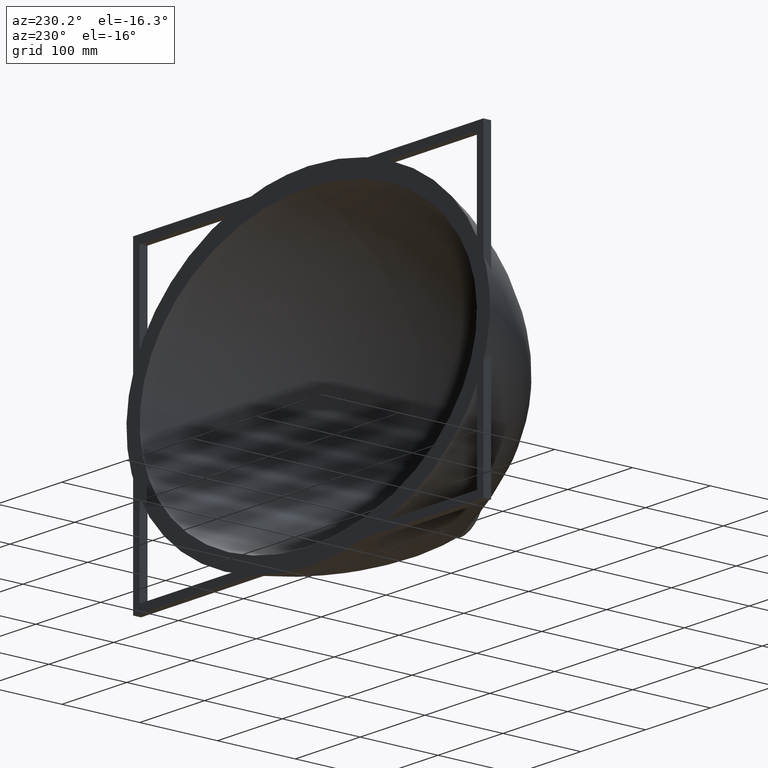
[diagram: clean part render]
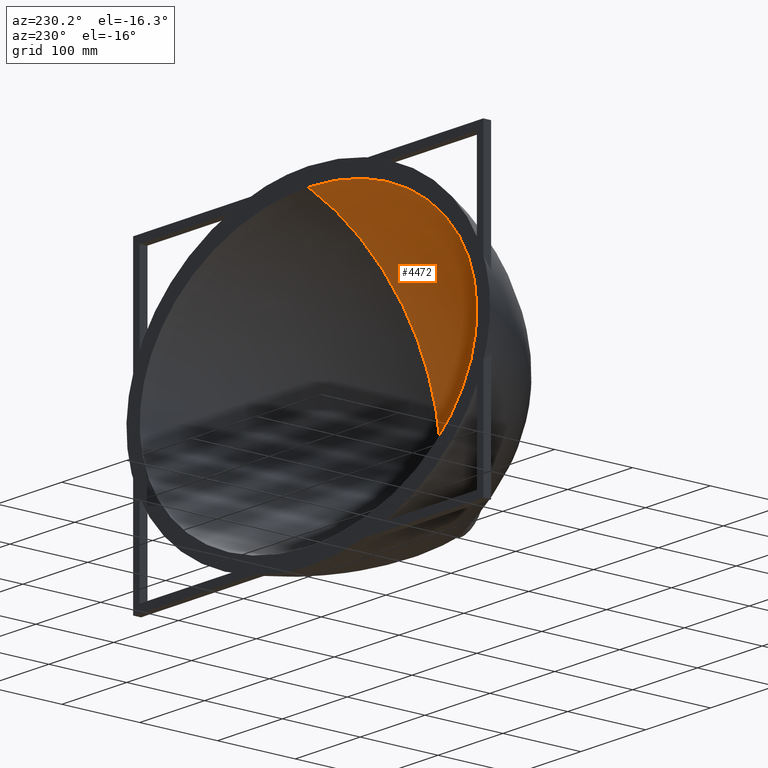
[diagram: same view with one face highlighted and labeled with its STEP entity id]
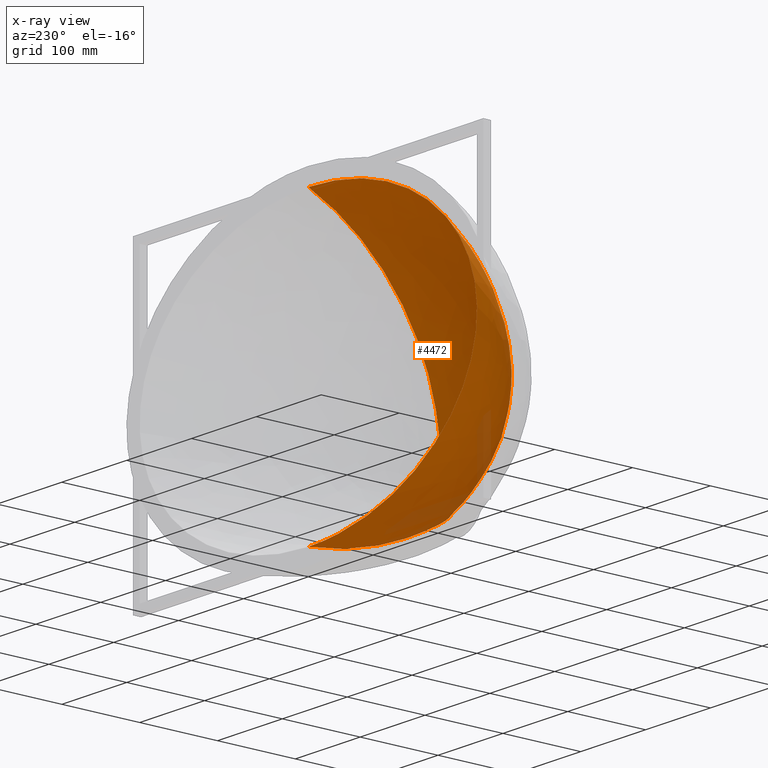
[diagram: x-ray of the same camera — body ghosted, the highlighted face saturated]
A machine part, auxiliary view. The second image highlights one B-rep face of the part: STEP entity #4472.
The next image is the same camera in x-ray: the body ghosted, the highlighted face saturated — about 7% of this face is hidden behind the body in this view.
In plain terms, the highlighted face is a freeform B-spline surface patch.
Its self-contained STEP definition (entity closure, byte-faithful):
#4 = CARTESIAN_POINT ( 'NONE',  ( -38.77865759090425300, -121.7014424945202400, -157.4994537610010900 ) ) ;
#5 = CARTESIAN_POINT ( 'NONE',  ( 111.4772775086861300, -145.6209346836106700, -114.7372125029550500 ) ) ;
#24 = CARTESIAN_POINT ( 'NONE',  ( 97.48662995115405700, -139.0680993305145700, -128.5529957803658800 ) ) ;
#31 = CARTESIAN_POINT ( 'NONE',  ( 81.01955231311032400, -132.7755290318717700, -140.1380242361425400 ) ) ;
#47 = CARTESIAN_POINT ( 'NONE',  ( 62.64783615071378600, -127.1529339918621400, -149.3729875084795300 ) ) ;
#56 = CARTESIAN_POINT ( 'NONE',  ( 38.77865759878368800, -121.7014424992332200, -157.4994537571244000 ) ) ;
#62 = CARTESIAN_POINT ( 'NONE',  ( 19.48563583624291300, -119.3554168101525500, -160.5968919771172200 ) ) ;
#74 = CARTESIAN_POINT ( 'NONE',  ( 6.500890367500512700, -118.8853150008827000, -161.2054162387754300 ) ) ;
#82 = CARTESIAN_POINT ( 'NONE',  ( 3.612973020026208000, -118.8099933056775700, -161.3023222456049800 ) ) ;
#92 = CARTESIAN_POINT ( 'NONE',  ( 1.445203446103377400, -118.7869051447916700, -161.3316144456078100 ) ) ;
#100 = CARTESIAN_POINT ( 'NONE',  ( 1.524100940938910600E-010, -118.7869051447035200, -161.3316144456561600 ) ) ;
#109 = CARTESIAN_POINT ( 'NONE',  ( 3.048371017416728900E-010, -60.40230100190881800, -180.5641899279885400 ) ) ;
#110 = VERTEX_POINT ( 'NONE', #3956 ) ;
#116 = CARTESIAN_POINT ( 'NONE',  ( -2.311225196482916900, -60.40230100183551100, -180.5641899280500700 ) ) ;
#134 = CARTESIAN_POINT ( 'NONE',  ( -5.777932478304570000, -60.42149997007892600, -180.5261086669280000 ) ) ;
#143 = CARTESIAN_POINT ( 'NONE',  ( -10.39661467768020700, -60.48413380896416000, -180.3996876762214800 ) ) ;
#154 = CARTESIAN_POINT ( 'NONE',  ( -31.16490232121122300, -60.87504764441063500, -179.6046301102378800 ) ) ;
#159 = CARTESIAN_POINT ( 'NONE',  ( -62.05236356497720600, -62.82589123243855100, -175.5383430895617500 ) ) ;
#172 = CARTESIAN_POINT ( 'NONE',  ( -100.6154283992664200, -67.35913180565974300, -164.5788566228046900 ) ) ;
#179 = CARTESIAN_POINT ( 'NONE',  ( -130.6972901196513100, -72.03468750912125500, -151.8808939448902600 ) ) ;
#186 = CARTESIAN_POINT ( 'NONE',  ( -158.0814858321655500, -77.26741790183939400, -135.6597801385951800 ) ) ;
#192 = CARTESIAN_POINT ( 'NONE',  ( -181.7783064586218100, -82.71664244729403500, -115.9982643908294300 ) ) ;
#201 = CARTESIAN_POINT ( 'NONE',  ( -200.9292302724199400, -88.04168060896529400, -93.18661258618435300 ) ) ;
#211 = CARTESIAN_POINT ( 'NONE',  ( -212.3007627005733600, -92.09182331010453000, -71.81629032477590600 ) ) ;
#217 = CARTESIAN_POINT ( 'NONE',  ( -219.6954429082276500, -95.63849885072858100, -48.61384965793293800 ) ) ;
#230 = CARTESIAN_POINT ( 'NONE',  ( -221.8944651530898400, -97.72422566344094700, -30.82330739874125300 ) ) ;
#234 = CARTESIAN_POINT ( 'NONE',  ( -221.0554262213602500, -99.06643837468026000, -15.00529077107875700 ) ) ;
#250 = CARTESIAN_POINT ( 'NONE',  ( -219.0854808462910900, -100.2323460543663200, 1.155441100044987300 ) ) ;
#304 = CARTESIAN_POINT ( 'NONE',  ( 4.572232349675520200E-010, 0.0000000000000000000, -185.0000000000000000 ) ) ;
#314 = CARTESIAN_POINT ( 'NONE',  ( -2.566803417555719900, -1.232595164407830900E-029, -185.0000000000000000 ) ) ;
#315 = CARTESIAN_POINT ( 'NONE',  ( -211.8879677622130400, -101.3541522771521000, 26.41958874611816200 ) ) ;
#329 = CARTESIAN_POINT ( 'NONE',  ( -196.2075036124609800, -101.7291505643255500, 52.53914676512866300 ) ) ;
#333 = CARTESIAN_POINT ( 'NONE',  ( -176.7752967224104500, -101.7757040705736800, 75.15800767046704300 ) ) ;
#345 = CARTESIAN_POINT ( 'NONE',  ( -161.8342083695843000, -101.6783197657684100, 88.80578691093683100 ) ) ;
#348 = CARTESIAN_POINT ( 'NONE',  ( -137.2440861088230700, -101.4359267998660000, 106.1407529435990800 ) ) ;
#359 = CARTESIAN_POINT ( 'NONE',  ( -113.2358966659637600, -101.1575478542338800, 119.1701625899922300 ) ) ;
#363 = CARTESIAN_POINT ( 'NONE',  ( -82.63337728446762800, -100.8185660862272800, 130.6263130349607300 ) ) ;
#377 = CARTESIAN_POINT ( 'NONE',  ( -59.82816381559847900, -100.6021361604114000, 136.4903864094978600 ) ) ;
#380 = CARTESIAN_POINT ( 'NONE',  ( -41.30958926748942900, -100.4647028521346600, 139.7592718520391800 ) ) ;
#383 = CARTESIAN_POINT ( 'NONE',  ( -6.416783112928707000, -1.232595164407830900E-029, -184.9590691978430100 ) ) ;
#393 = CARTESIAN_POINT ( 'NONE',  ( -27.42489433728246300, -100.3845558589379400, 141.4996067370633500 ) ) ;
#394 = CARTESIAN_POINT ( 'NONE',  ( -62.64783613887832600, -127.1529339844002800, -149.3729875167236100 ) ) ;
#395 = CARTESIAN_POINT ( 'NONE',  ( -13.58047225771170500, -100.3324095255749000, 142.5341508308071900 ) ) ;
#398 = CARTESIAN_POINT ( 'NONE',  ( -11.54635462865013400, -1.848892746611746400E-029, -184.8230582913892300 ) ) ;
#410 = CARTESIAN_POINT ( 'NONE',  ( -81.01955229871150300, -132.7755290224717400, -140.1380242488191100 ) ) ;
#411 = CARTESIAN_POINT ( 'NONE',  ( 2.597816890712497400E-009, -100.3133365238683900, 142.8813953691429500 ) ) ;
#426 = CARTESIAN_POINT ( 'NONE',  ( -34.61329639284462400, -4.930380657631323800E-029, -183.9673373527186000 ) ) ;
#434 = CARTESIAN_POINT ( 'NONE',  ( 13.58047226229799500, -100.3324095256412100, 142.5341508315014800 ) ) ;
#439 = CARTESIAN_POINT ( 'NONE',  ( 27.42489434004659200, -100.3845558590723400, 141.4996067386034300 ) ) ;
#444 = CARTESIAN_POINT ( 'NONE',  ( 41.30958926724046200, -100.4647028523407400, 139.7592718547376500 ) ) ;
#448 = CARTESIAN_POINT ( 'NONE',  ( -68.94524658473652300, -1.232595164407830900E-028, -179.5850697860287300 ) ) ;
#451 = CARTESIAN_POINT ( 'NONE',  ( 59.82816380992162000, -100.6021361607201800, 136.4903864143604200 ) ) ;
#460 = CARTESIAN_POINT ( 'NONE',  ( -112.1245852803711900, 9.860761315262647600E-029, -167.6884198015981200 ) ) ;
#464 = CARTESIAN_POINT ( 'NONE',  ( 82.63337726983252200, -100.8185660866823700, 130.6263130440378000 ) ) ;
#472 = CARTESIAN_POINT ( 'NONE',  ( 113.2358966370135500, -101.1575478549437200, 119.1701626086586300 ) ) ;
#480 = CARTESIAN_POINT ( 'NONE',  ( 137.2440860692005900, -101.4359268008656700, 106.1407529741082500 ) ) ;
#489 = CARTESIAN_POINT ( 'NONE',  ( 161.8342083234571200, -101.6783197671980300, 88.80578695623522400 ) ) ;
#498 = CARTESIAN_POINT ( 'NONE',  ( 176.7752966758009700, -101.7757040723820100, 75.15800772592653800 ) ) ;
#501 = CARTESIAN_POINT ( 'NONE',  ( -146.2772247974058100, -4.930380657631323800E-029, -153.7962908367967700 ) ) ;
#506 = CARTESIAN_POINT ( 'NONE',  ( 196.2075035712572100, -101.7291505668826700, 52.53914683323463900 ) ) ;
#514 = CARTESIAN_POINT ( 'NONE',  ( -177.9506942754561000, 5.546678239835239300E-029, -135.9285441674715900 ) ) ;
#520 = CARTESIAN_POINT ( 'NONE',  ( 211.8879677332387500, -101.3541522807655200, 26.41958882385945600 ) ) ;
#523 = CARTESIAN_POINT ( 'NONE',  ( -205.9902479773966500, 3.081487911019577400E-029, -114.1630346393565700 ) ) ;
#526 = CARTESIAN_POINT ( 'NONE',  ( 219.0854808401760700, -100.2323460581834000, 1.155441149237736800 ) ) ;
#540 = CARTESIAN_POINT ( 'NONE',  ( 221.0554262184481600, -99.06643837885886200, -15.00529072263784900 ) ) ;
#546 = CARTESIAN_POINT ( 'NONE',  ( 221.8944651534981500, -97.72422566796818400, -30.82330735199750600 ) ) ;
#556 = CARTESIAN_POINT ( 'NONE',  ( 219.6954429199981600, -95.63849885924211900, -48.61384959088810100 ) ) ;
#559 = CARTESIAN_POINT ( 'NONE',  ( -229.4518989697168400, 3.081487911019577400E-029, -88.80985294769922700 ) ) ;
#562 = CARTESIAN_POINT ( 'NONE',  ( 212.3007627212429600, -92.09182331956063200, -71.81629026579831500 ) ) ;
#573 = CARTESIAN_POINT ( 'NONE',  ( 200.9292302996326200, -88.04168061887402500, -93.18661253542181600 ) ) ;
#582 = CARTESIAN_POINT ( 'NONE',  ( 181.7783064899985000, -82.71664245706091400, -115.9982643500457200 ) ) ;
#592 = CARTESIAN_POINT ( 'NONE',  ( 158.0814858641102200, -77.26741791087583500, -135.6597801079388700 ) ) ;
#595 = CARTESIAN_POINT ( 'NONE',  ( -244.2896152223376000, 4.930380657631323800E-029, -64.95274969968421900 ) ) ;
#600 = CARTESIAN_POINT ( 'NONE',  ( 130.6972901488588000, -72.03468751693841900, -151.8808939234452000 ) ) ;
#607 = CARTESIAN_POINT ( 'NONE',  ( -255.0079137470581300, -4.930380657631323800E-029, -38.86048423362694800 ) ) ;
#608 = CARTESIAN_POINT ( 'NONE',  ( 100.6154284231772500, -67.35913181186524000, -164.5788566093579000 ) ) ;
#613 = CARTESIAN_POINT ( 'NONE',  ( 65.75914860801410100, -167.7917439943316800, 32.15789512977750800 ) ) ;
#614 = CARTESIAN_POINT ( 'NONE',  ( 62.05236358081703700, -62.82589123635788300, -175.5383430836969300 ) ) ;
#618 = CARTESIAN_POINT ( 'NONE',  ( -259.3992761697404600, 3.081487911019577400E-029, -18.69248544513646200 ) ) ;
#620 = CARTESIAN_POINT ( 'NONE',  ( 31.16490232506386700, -60.87504764638595100, -179.6046301080889100 ) ) ;
#625 = CARTESIAN_POINT ( 'NONE',  ( -260.1059458262676600, 9.860761315262647600E-029, -0.6589969940730567900 ) ) ;
#630 = CARTESIAN_POINT ( 'NONE',  ( 10.39661467887218300, -60.48413380962352200, -180.3996876755838600 ) ) ;
#636 = CARTESIAN_POINT ( 'NONE',  ( 5.777932479057578300, -60.42149997044546700, -180.5261086666008900 ) ) ;
#648 = CARTESIAN_POINT ( 'NONE',  ( -259.5316745309576700, 1.294224922628222500E-028, 17.82087994229939200 ) ) ;
#651 = CARTESIAN_POINT ( 'NONE',  ( 2.311225197092631400, -60.40230100198213100, -180.5641899279270000 ) ) ;
#654 = CARTESIAN_POINT ( 'NONE',  ( -253.7212669368725200, -1.664003471950571800E-028, 47.01350990581718000 ) ) ;
#667 = CARTESIAN_POINT ( 'NONE',  ( -237.2697526475222700, 4.930380657631323800E-029, 77.72788248232859600 ) ) ;
#671 = CARTESIAN_POINT ( 'NONE',  ( 3.048371017416728900E-010, -60.40230100190881800, -180.5641899279885400 ) ) ;
#681 = CARTESIAN_POINT ( 'NONE',  ( -215.3262453614607400, 3.081487911019577400E-029, 104.6215120696889800 ) ) ;
#690 = CARTESIAN_POINT ( 'NONE',  ( -197.8533207069275200, -7.395570986446985700E-029, 120.9798537218212600 ) ) ;
#700 = CARTESIAN_POINT ( 'NONE',  ( 4.572232349675520200E-010, 0.0000000000000000000, -185.0000000000000000 ) ) ;
#702 = CARTESIAN_POINT ( 'NONE',  ( -168.3880016434328300, 6.162975822039154700E-030, 141.7818512493566300 ) ) ;
#706 = CARTESIAN_POINT ( 'NONE',  ( -139.1342931326053600, 1.479114197289397100E-028, 157.3938885333099100 ) ) ;
#712 = CARTESIAN_POINT ( 'NONE',  ( -101.5449471098858700, 1.232595164407830900E-029, 170.9625568690589400 ) ) ;
#713 = CARTESIAN_POINT ( 'NONE',  ( -2.566803417555719900, 0.0000000000000000000, -185.0000000000000000 ) ) ;
#717 = CARTESIAN_POINT ( 'NONE',  ( -6.416783112928707000, 0.0000000000000000000, -184.9590691978430100 ) ) ;
#723 = CARTESIAN_POINT ( 'NONE',  ( -73.45947751149606100, -8.011868568650901100E-029, 177.8115466436256900 ) ) ;
#733 = CARTESIAN_POINT ( 'NONE',  ( -50.65242750111525500, -3.697785493223492800E-029, 181.5864721567493200 ) ) ;
#734 = CARTESIAN_POINT ( 'NONE',  ( -11.54635462865013400, 0.0000000000000000000, -184.8230582913892300 ) ) ;
#736 = CARTESIAN_POINT ( 'NONE',  ( -34.61329639284462400, 0.0000000000000000000, -183.9673373527186000 ) ) ;
#739 = CARTESIAN_POINT ( 'NONE',  ( -33.58084321257378900, 1.848892746611746400E-029, 183.5771990638075400 ) ) ;
#754 = CARTESIAN_POINT ( 'NONE',  ( -16.58790103192467000, 6.779273404243070200E-029, 184.7476461294701000 ) ) ;
#755 = CARTESIAN_POINT ( 'NONE',  ( -68.94524658473652300, 0.0000000000000000000, -179.5850697860287300 ) ) ;
#759 = CARTESIAN_POINT ( 'NONE',  ( -112.1245852803711900, 0.0000000000000000000, -167.6884198015981200 ) ) ;
#770 = CARTESIAN_POINT ( 'NONE',  ( -146.2772247974058100, 0.0000000000000000000, -153.7962908367967700 ) ) ;
#774 = CARTESIAN_POINT ( 'NONE',  ( -177.9506942754561000, 0.0000000000000000000, -135.9285441674715900 ) ) ;
#786 = CARTESIAN_POINT ( 'NONE',  ( -205.9902479773966500, 0.0000000000000000000, -114.1630346393565700 ) ) ;
#789 = CARTESIAN_POINT ( 'NONE',  ( -229.4518989697168400, 0.0000000000000000000, -88.80985294769922700 ) ) ;
#806 = CARTESIAN_POINT ( 'NONE',  ( -244.2896152223376000, 0.0000000000000000000, -64.95274969968421900 ) ) ;
#808 = CARTESIAN_POINT ( 'NONE',  ( -5.529300341382571200, 7.601003513848291200E-029, 185.0077454772929300 ) ) ;
#818 = CARTESIAN_POINT ( 'NONE',  ( -97.48662993548610700, -139.0680993196487800, -128.5529957980177500 ) ) ;
#820 = CARTESIAN_POINT ( 'NONE',  ( -255.0079137470581300, 0.0000000000000000000, -38.86048423362694800 ) ) ;
#834 = CARTESIAN_POINT ( 'NONE',  ( 3.744437485769802600E-009, 0.0000000000000000000, 185.0077454772356300 ) ) ;
#846 = CARTESIAN_POINT ( 'NONE',  ( -259.3992761697404600, 0.0000000000000000000, -18.69248544513646200 ) ) ;
#854 = CARTESIAN_POINT ( 'NONE',  ( -260.1059458262676600, 0.0000000000000000000, -0.6589969940730567900 ) ) ;
#862 = CARTESIAN_POINT ( 'NONE',  ( -259.5316745309576700, 0.0000000000000000000, 17.82087994229939200 ) ) ;
#870 = CARTESIAN_POINT ( 'NONE',  ( -253.7212669368725200, 0.0000000000000000000, 47.01350990581718000 ) ) ;
#878 = CARTESIAN_POINT ( 'NONE',  ( -237.2697526475222700, 0.0000000000000000000, 77.72788248232859600 ) ) ;
#889 = FACE_OUTER_BOUND ( 'NONE', #1981, .T. ) ;
#888 = CARTESIAN_POINT ( 'NONE',  ( -215.3262453614607400, 0.0000000000000000000, 104.6215120696889800 ) ) ;
#898 = CARTESIAN_POINT ( 'NONE',  ( -197.8533207069275200, 0.0000000000000000000, 120.9798537218212600 ) ) ;
#910 = CARTESIAN_POINT ( 'NONE',  ( -168.3880016434328300, 0.0000000000000000000, 141.7818512493566300 ) ) ;
#920 = CARTESIAN_POINT ( 'NONE',  ( -139.1342931326053600, 0.0000000000000000000, 157.3938885333099100 ) ) ;
#932 = CARTESIAN_POINT ( 'NONE',  ( -101.5449471098858700, 0.0000000000000000000, 170.9625568690589400 ) ) ;
#940 = CARTESIAN_POINT ( 'NONE',  ( -73.45947751149606100, 0.0000000000000000000, 177.8115466436256900 ) ) ;
#953 = CARTESIAN_POINT ( 'NONE',  ( -50.65242750111525500, 0.0000000000000000000, 181.5864721567493200 ) ) ;
#959 = CARTESIAN_POINT ( 'NONE',  ( -33.58084321257378900, 0.0000000000000000000, 183.5771990638075400 ) ) ;
#968 = CARTESIAN_POINT ( 'NONE',  ( -16.58790103192467000, 0.0000000000000000000, 184.7476461294701000 ) ) ;
#974 = ORIENTED_EDGE ( 'NONE', *, *, #3096, .F. ) ;
#978 = CARTESIAN_POINT ( 'NONE',  ( 3.888477213831453800E-009, 0.0000000000000000000, 185.1377951512043300 ) ) ;
#987 = ORIENTED_EDGE ( 'NONE', *, *, #2575, .T. ) ;
#991 = CARTESIAN_POINT ( 'NONE',  ( 16.58790103883738700, 0.0000000000000000000, 184.7476461291264500 ) ) ;
#998 = CARTESIAN_POINT ( 'NONE',  ( 33.58084321689379000, 0.0000000000000000000, 183.5771990633527700 ) ) ;
#1006 = CARTESIAN_POINT ( 'NONE',  ( 50.65242750113803500, 0.0000000000000000000, 181.5864721566628600 ) ) ;
#1011 = CARTESIAN_POINT ( 'NONE',  ( 73.45947750377109700, 0.0000000000000000000, 177.8115466449803300 ) ) ;
#1025 = CARTESIAN_POINT ( 'NONE',  ( 101.5449470893769300, 0.0000000000000000000, 170.9625568745314900 ) ) ;
#1030 = CARTESIAN_POINT ( 'NONE',  ( 139.1342930917562900, 0.0000000000000000000, 157.3938885502267900 ) ) ;
#1042 = CARTESIAN_POINT ( 'NONE',  ( 168.3880015876912400, 0.0000000000000000000, 141.7818512817267400 ) ) ;
#1047 = CARTESIAN_POINT ( 'NONE',  ( 197.8533206427430900, 0.0000000000000000000, 120.9798537739468100 ) ) ;
#1062 = CARTESIAN_POINT ( 'NONE',  ( 215.3262452974707600, 0.0000000000000000000, 104.6215121355303200 ) ) ;
#1080 = CARTESIAN_POINT ( 'NONE',  ( 237.2697525929354200, 0.0000000000000000000, 77.72788256511545100 ) ) ;
#1111 = CARTESIAN_POINT ( 'NONE',  ( 253.7212669017755500, 0.0000000000000000000, 47.01351000140578400 ) ) ;
#1123 = CARTESIAN_POINT ( 'NONE',  ( 259.5316745247481000, 0.0000000000000000000, 17.82088000448748800 ) ) ;
#1126 = CARTESIAN_POINT ( 'NONE',  ( 260.1059458264750200, 0.0000000000000000000, -0.6589969328866943600 ) ) ;
#1139 = CARTESIAN_POINT ( 'NONE',  ( 259.3992761764650900, 0.0000000000000000000, -18.69248538637459900 ) ) ;
#1144 = CARTESIAN_POINT ( 'NONE',  ( 255.0079137717297000, 0.0000000000000000000, -38.86048415290631700 ) ) ;
#1158 = CARTESIAN_POINT ( 'NONE',  ( 244.2896152594268200, 0.0000000000000000000, -64.95274962984925100 ) ) ;
#1163 = CARTESIAN_POINT ( 'NONE',  ( 229.4518990156732900, 0.0000000000000000000, -88.80985288877889200 ) ) ;
#1177 = CARTESIAN_POINT ( 'NONE',  ( 205.9902480284779900, 0.0000000000000000000, -114.1630345934451200 ) ) ;
#1183 = CARTESIAN_POINT ( 'NONE',  ( 177.9506943263256700, 0.0000000000000000000, -135.9285441345604100 ) ) ;
#1196 = CARTESIAN_POINT ( 'NONE',  ( 146.2772248432047500, 0.0000000000000000000, -153.7962908153193400 ) ) ;
#1198 = CARTESIAN_POINT ( 'NONE',  ( -111.4772774934118800, -145.6209346718663700, -114.7372125259618200 ) ) ;
#1199 = CARTESIAN_POINT ( 'NONE',  ( 112.1245853174007300, 0.0000000000000000000, -167.6884197895803400 ) ) ;
#1211 = CARTESIAN_POINT ( 'NONE',  ( 68.94524660888869500, 0.0000000000000000000, -179.5850697822002600 ) ) ;
#1219 = VERTEX_POINT ( 'NONE', #3544 ) ;
#1228 = CARTESIAN_POINT ( 'NONE',  ( -122.4713193162580500, -152.0243248750598200, -98.99278234014244000 ) ) ;
#1229 = CARTESIAN_POINT ( 'NONE',  ( 34.61329639869962400, 0.0000000000000000000, -183.9673373519855200 ) ) ;
#1245 = CARTESIAN_POINT ( 'NONE',  ( 11.54635463045116600, 0.0000000000000000000, -184.8230582912633500 ) ) ;
#1256 = CARTESIAN_POINT ( 'NONE',  ( 6.416783114061223300, 0.0000000000000000000, -184.9590691978137900 ) ) ;
#1273 = VERTEX_POINT ( 'NONE', #3481 ) ;
#1283 = CARTESIAN_POINT ( 'NONE',  ( 4.572232349675520200E-010, 0.0000000000000000000, -185.0000000000000000 ) ) ;
#1613 = CARTESIAN_POINT ( 'NONE',  ( -128.6466772796487700, -156.8945205834789900, -84.56033406685934000 ) ) ;
#1625 = CARTESIAN_POINT ( 'NONE',  ( -132.2521528471505400, -161.1591753186759200, -69.22836539047772000 ) ) ;
#1636 = CARTESIAN_POINT ( 'NONE',  ( -132.8822941484146200, -163.6670079822287700, -57.73574673699650400 ) ) ;
#1684 = CARTESIAN_POINT ( 'NONE',  ( 130.0265065004052500, -166.6823960044745300, -37.59934031268797800 ) ) ;
#1874 = CARTESIAN_POINT ( 'NONE',  ( 79.75803708369518600, -168.1268910395251300, 24.65807731899375100 ) ) ;
#1887 = B_SPLINE_CURVE_WITH_KNOTS ( 'NONE', 3,
 ( #4464, #4467, #4448, #4439, #4435, #4431, #4421, #4416, #4405, #4400, #4398, #4394, #4385, #4384, #4379, #4370, #4368, #4361, #4358, #4349, #4346, #4339, #4336, #4327, #4323, #4317, #4313, #4303, #4299 ),
 .UNSPECIFIED., .F., .F.,
 ( 4, 1, 1, 1, 1, 1, 1, 1, 1, 1, 1, 1, 1, 1, 1, 1, 1, 1, 1, 1, 1, 1, 1, 1, 1, 1, 4 ),
 ( 0.0000000000000000000, 0.006249999999999976900, 0.009375000000000020500, 0.01249999999999995400, 0.06249999999999999300, 0.09374999999999998600, 0.1249999999999999900, 0.1562499999999999700, 0.1874999999999999700, 0.2187499999999999700, 0.2499999999999999700, 0.2656249999999999400, 0.2968749999999999400, 0.3054857053344992000, 0.3124999999999999400, 0.3437499999999999400, 0.3749999999999999400, 0.3828124999999999400, 0.4062499999999999400, 0.4140624999999999400, 0.4374999999999999400, 0.4531249999999999400, 0.4687499999999999400, 0.4765624999999999400, 0.4843749999999999400, 0.4921874999999999400, 0.4999999999999999400 ),
 .UNSPECIFIED. ) ;
#1981 = EDGE_LOOP ( 'NONE', ( #974, #987, #5055, #3737 ) ) ;
#2037 = B_SPLINE_CURVE_WITH_KNOTS ( 'NONE', 3,
 ( #4580, #4627, #4488, #4482 ),
 .UNSPECIFIED., .F., .F.,
 ( 4, 4 ),
 ( 0.0000000000000000000, 1.000000000000000000 ),
 .UNSPECIFIED. ) ;
#2042 = CARTESIAN_POINT ( 'NONE',  ( -131.7903333150701400, -165.2807222076900800, -47.73059500546416700 ) ) ;
#2061 = CARTESIAN_POINT ( 'NONE',  ( -130.0265065026238200, -166.6823959998857800, -37.59934033664630000 ) ) ;
#2075 = CARTESIAN_POINT ( 'NONE',  ( -124.8990415461964100, -168.0307682969817100, -22.10807019377700700 ) ) ;
#2091 = CARTESIAN_POINT ( 'NONE',  ( -114.9757934278126900, -168.4810046370724000, -6.558884658889772000 ) ) ;
#2112 = EDGE_CURVE ( 'NONE', #1273, #1219, #2037, .T. ) ;
#2135 = CARTESIAN_POINT ( 'NONE',  ( 131.7903333139778100, -165.2807222127137000, -47.73059498201443100 ) ) ;
#2465 = CARTESIAN_POINT ( 'NONE',  ( -103.1489522319092300, -168.5363619780128200, 6.716406169552066700 ) ) ;
#2487 = CARTESIAN_POINT ( 'NONE',  ( -94.23376497904631300, -168.4188731031888700, 14.64182384227327000 ) ) ;
#2498 = VERTEX_POINT ( 'NONE', #2774 ) ;
#2501 = CARTESIAN_POINT ( 'NONE',  ( -79.75803710388714800, -168.1268910383246300, 24.65807730239491100 ) ) ;
#2529 = B_SPLINE_SURFACE_WITH_KNOTS ( 'NONE', 3, 3, ( 
 ( #1283, #3803, #1256, #1245, #1229, #1211, #1199, #1196, #1183, #1177, #1163, #1158, #1144, #1139, #1126, #1123, #1111, #1080, #1062, #1047, #1042, #1030, #1025, #1011, #1006, #998, #991, #978, #968, #959, #953, #940, #932, #920, #910, #898, #888, #878, #870, #862, #854, #846, #820, #806, #789, #786, #774, #770, #759, #755, #736, #734, #717, #713, #700 ),
 ( #671, #651, #636, #630, #620, #614, #608, #600, #592, #582, #573, #562, #556, #546, #540, #526, #520, #506, #498, #489, #480, #472, #464, #451, #444, #439, #434, #411, #395, #393, #380, #377, #363, #359, #348, #345, #333, #329, #315, #250, #234, #230, #217, #211, #201, #192, #186, #179, #172, #159, #154, #143, #134, #116, #109 ),
 ( #100, #92, #82, #74, #62, #56, #47, #31, #24, #5, #4691, #4264, #3002, #2563, #2135, #1684, #5290, #4437, #4018, #3613, #1874, #613, #5445, #5065, #5048, #5032, #4644, #4613, #4218, #4183, #3819, #3388, #2945, #2927, #2501, #2487, #2465, #2091, #2075, #2061, #2042, #1636, #1625, #1613, #1228, #1198, #818, #410, #394, #4, #5463, #5460, #5444, #5358, #5340 ),
 ( #5326, #5309, #5295, #5211, #5191, #5186, #5173, #5165, #5148, #5142, #5125, #5116, #5102, #5097, #5082, #5069, #5063, #5046, #5031, #4931, #4914, #4897, #4880, #4828, #4768, #4745, #4728, #4724, #4710, #4702, #4688, #4678, #4663, #4642, #4628, #4624, #4611, #4593, #4505, #4489, #4455, #4354, #4329, #4324, #4306, #4300, #4283, #4276, #4261, #4252, #4234, #4217, #4201, #4196, #4181 ) ),
 .UNSPECIFIED., .F., .T., .F.,
 ( 4, 4 ),
 ( 4, 1, 1, 1, 1, 1, 1, 1, 1, 1, 1, 1, 1, 1, 1, 1, 1, 1, 1, 1, 1, 1, 1, 1, 1, 1, 1, 1, 1, 1, 1, 1, 1, 1, 1, 1, 1, 1, 1, 1, 1, 1, 1, 1, 1, 1, 1, 1, 1, 1, 1, 1, 4 ),
 ( 0.0000000000000000000, 1.000000000000000000 ),
 ( 0.0000000000000000000, 0.006250000000000088800, 0.009374999999999911200, 0.01249999999999995600, 0.06250000000000000000, 0.09375000000000000000, 0.1250000000000000000, 0.1562500000000000000, 0.1875000000000000000, 0.2187500000000000000, 0.2500000000000000000, 0.2656250000000000000, 0.2968750000000000000, 0.3054857052560912000, 0.3125000000000000000, 0.3437500000000000000, 0.3750000000000000000, 0.3828125000000000000, 0.4062500000000000000, 0.4140625000000000000, 0.4375000000000000000, 0.4531250000000000000, 0.4687500000000000000, 0.4765625000000000000, 0.4843750000000000000, 0.4921875000000000000, 0.5000000000000000000, 0.5078125000000000000, 0.5156250000000000000, 0.5234375000000000000, 0.5312500000000000000, 0.5468750000000000000, 0.5625000000000000000, 0.5859375000000000000, 0.5937500000000000000, 0.6171875000000000000, 0.6250000000000000000, 0.6562500000000000000, 0.6875000000000000000, 0.6945142946655007400, 0.7031250000000000000, 0.7343750000000000000, 0.7500000000000000000, 0.7812500000000000000, 0.8125000000000000000, 0.8437500000000000000, 0.8750000000000000000, 0.9062500000000000000, 0.9375000000000000000, 0.9875000000000000400, 0.9906249999999999800, 0.9937500000000000200, 1.000000000000000000 ),
 .UNSPECIFIED. ) ;
#2563 = CARTESIAN_POINT ( 'NONE',  ( 132.8822941484927200, -163.6670079876717000, -57.73574671448551500 ) ) ;
#2575 = EDGE_CURVE ( 'NONE', #2498, #110, #2603, .T. ) ;
#2603 = B_SPLINE_CURVE_WITH_KNOTS ( 'NONE', 3,
 ( #2949, #2930, #2728, #2719 ),
 .UNSPECIFIED., .F., .F.,
 ( 4, 4 ),
 ( 0.0000000000000000000, 1.000000000000000000 ),
 .UNSPECIFIED. ) ;
#2719 = CARTESIAN_POINT ( 'NONE',  ( -8.467618967111789600E-014, -169.9999999999998900, -63.00067179528998200 ) ) ;
#2728 = CARTESIAN_POINT ( 'NONE',  ( 1.248082366622771400E-009, -166.7833963462323400, 45.80402887660420000 ) ) ;
#2732 = B_SPLINE_CURVE_WITH_KNOTS ( 'NONE', 3,
 ( #834, #808, #754, #739, #733, #723, #712, #706, #702, #690, #681, #667, #654, #648, #625, #618, #607, #595, #559, #523, #514, #501, #460, #448, #426, #398, #383, #314, #304 ),
 .UNSPECIFIED., .F., .F.,
 ( 4, 1, 1, 1, 1, 1, 1, 1, 1, 1, 1, 1, 1, 1, 1, 1, 1, 1, 1, 1, 1, 1, 1, 1, 1, 1, 4 ),
 ( 0.5000000000000000000, 0.5078125000000000000, 0.5156250000000000000, 0.5234375000000000000, 0.5312500000000000000, 0.5468750000000000000, 0.5625000000000000000, 0.5859375000000000000, 0.5937500000000000000, 0.6171875000000000000, 0.6250000000000000000, 0.6562500000000000000, 0.6875000000000000000, 0.6945142946655007400, 0.7031250000000000000, 0.7343750000000000000, 0.7500000000000000000, 0.7812500000000000000, 0.8125000000000000000, 0.8437500000000000000, 0.8750000000000000000, 0.9062500000000000000, 0.9375000000000000000, 0.9875000000000000400, 0.9906249999999999800, 0.9937500000000000200, 1.000000000000000000 ),
 .UNSPECIFIED. ) ;
#2774 = CARTESIAN_POINT ( 'NONE',  ( 3.744437485769802600E-009, 0.0000000000000000000, 185.0077454772356300 ) ) ;
#2927 = CARTESIAN_POINT ( 'NONE',  ( -65.75914862275489300, -167.7917439934794000, 32.15789511934673300 ) ) ;
#2930 = CARTESIAN_POINT ( 'NONE',  ( 2.496260143036721500E-009, -100.3196941911149500, 142.7656471898134200 ) ) ;
#2945 = CARTESIAN_POINT ( 'NONE',  ( -47.99079047953902900, -167.3837411542989200, 38.76304219050387400 ) ) ;
#2949 = CARTESIAN_POINT ( 'NONE',  ( 3.744437485769802600E-009, 0.0000000000000000000, 185.0077454772356300 ) ) ;
#3002 = CARTESIAN_POINT ( 'NONE',  ( 132.2521528523124600, -161.1591753289122300, -69.22836535408072200 ) ) ;
#3096 = EDGE_CURVE ( 'NONE', #2498, #1273, #2732, .T. ) ;
#3388 = CARTESIAN_POINT ( 'NONE',  ( -34.76661030419609200, -167.1232757518996800, 42.15552983325399300 ) ) ;
#3419 = EDGE_CURVE ( 'NONE', #1219, #110, #1887, .T. ) ;
#3481 = CARTESIAN_POINT ( 'NONE',  ( 4.572232349675520200E-010, 0.0000000000000000000, -185.0000000000000000 ) ) ;
#3544 = CARTESIAN_POINT ( 'NONE',  ( 7.914675859144182400E-015, -170.0000000000000300, -129.0000000000001700 ) ) ;
#3613 = CARTESIAN_POINT ( 'NONE',  ( 94.23376495546654000, -168.4188731049061400, 14.64182386654166700 ) ) ;
#3737 = ORIENTED_EDGE ( 'NONE', *, *, #2112, .F. ) ;
#3803 = CARTESIAN_POINT ( 'NONE',  ( 2.566803418470212400, 0.0000000000000000000, -185.0000000000000000 ) ) ;
#3819 = CARTESIAN_POINT ( 'NONE',  ( -24.02677678740512600, -166.9578895361797200, 44.05243344458240500 ) ) ;
#3956 = CARTESIAN_POINT ( 'NONE',  ( -8.467618967111789600E-014, -169.9999999999998900, -63.00067179528998200 ) ) ;
#4018 = CARTESIAN_POINT ( 'NONE',  ( 103.1489522079936600, -168.5363619801854600, 6.716406199087402700 ) ) ;
#4181 = CARTESIAN_POINT ( 'NONE',  ( 7.914675859144182400E-015, -170.0000000000000300, -129.0000000000001700 ) ) ;
#4183 = CARTESIAN_POINT ( 'NONE',  ( -15.96528683149694000, -166.8614446744870700, 45.06505650654871400 ) ) ;
#4196 = CARTESIAN_POINT ( 'NONE',  ( -0.4388568511917198500, -170.0000000000000300, -129.0000000000001700 ) ) ;
#4201 = CARTESIAN_POINT ( 'NONE',  ( -1.097201451189157500, -170.0000000000000300, -128.9859882443704200 ) ) ;
#4217 = CARTESIAN_POINT ( 'NONE',  ( -1.973936781004222500, -170.0000000000000000, -128.9398841801161100 ) ) ;
#4218 = CARTESIAN_POINT ( 'NONE',  ( -7.918111428406986900, -166.7986963598892500, 45.66895401386031500 ) ) ;
#4234 = CARTESIAN_POINT ( 'NONE',  ( -5.914309179725691500, -169.9999999999999700, -128.6510534024953100 ) ) ;
#4252 = CARTESIAN_POINT ( 'NONE',  ( -11.73943308336916000, -169.9999999999998000, -127.1919447005213900 ) ) ;
#4261 = CARTESIAN_POINT ( 'NONE',  ( -18.59814842669459600, -169.9999999999999400, -123.5300270719805600 ) ) ;
#4264 = CARTESIAN_POINT ( 'NONE',  ( 128.6466772893562100, -156.8945205948489800, -84.56033403448825000 ) ) ;
#4276 = CARTESIAN_POINT ( 'NONE',  ( -23.50363015430370300, -170.0000000000002600, -119.5035697538249500 ) ) ;
#4283 = CARTESIAN_POINT ( 'NONE',  ( -27.53002336848421900, -170.0000000000000600, -114.5982864921670200 ) ) ;
#4299 = CARTESIAN_POINT ( 'NONE',  ( -8.467618967111789600E-014, -169.9999999999998900, -63.00067179528998200 ) ) ;
#4300 = CARTESIAN_POINT ( 'NONE',  ( -30.58158466705543800, -169.9999999999997200, -108.8823025719337100 ) ) ;
#4303 = CARTESIAN_POINT ( 'NONE',  ( -0.5484839479601282300, -169.9999999999998900, -63.00067179528998200 ) ) ;
#4306 = CARTESIAN_POINT ( 'NONE',  ( -32.53461509536830900, -170.0000000000002300, -102.5818216720686400 ) ) ;
#4313 = CARTESIAN_POINT ( 'NONE',  ( -1.645451843880195500, -169.9999999999999100, -63.02925863359329400 ) ) ;
#4317 = CARTESIAN_POINT ( 'NONE',  ( -3.286508291143622100, -170.0000000000000300, -63.15789940595817600 ) ) ;
#4323 = CARTESIAN_POINT ( 'NONE',  ( -4.918773945173699100, -170.0000000000000900, -63.36937936785528100 ) ) ;
#4324 = CARTESIAN_POINT ( 'NONE',  ( -33.11611943972446400, -170.0000000000001100, -97.09694922582498600 ) ) ;
#4327 = CARTESIAN_POINT ( 'NONE',  ( -7.077546564080428500, -170.0000000000001400, -63.75888357771660300 ) ) ;
#4329 = CARTESIAN_POINT ( 'NONE',  ( -32.82536436884399200, -169.9999999999998600, -91.61213455889432600 ) ) ;
#4336 = CARTESIAN_POINT ( 'NONE',  ( -9.732058371547079600, -169.9999999999999700, -64.44190684370714500 ) ) ;
#4339 = CARTESIAN_POINT ( 'NONE',  ( -13.32210749721774500, -169.9999999999998300, -65.74138742436531400 ) ) ;
#4346 = CARTESIAN_POINT ( 'NONE',  ( -16.21662738416334500, -170.0000000000000600, -67.19847336104014300 ) ) ;
#4349 = CARTESIAN_POINT ( 'NONE',  ( -19.37360773140366600, -170.0000000000002300, -69.19179982466069100 ) ) ;
#4354 = CARTESIAN_POINT ( 'NONE',  ( -32.02994153714089300, -169.9999999999997700, -87.77838685151884600 ) ) ;
#4358 = CARTESIAN_POINT ( 'NONE',  ( -21.45970067529020800, -170.0000000000000600, -70.81874945906331200 ) ) ;
#4361 = CARTESIAN_POINT ( 'NONE',  ( -24.51018511363693600, -169.9999999999999100, -73.72277363439025100 ) ) ;
#4368 = CARTESIAN_POINT ( 'NONE',  ( -27.53002936083850100, -170.0000000000003700, -77.40163849401473300 ) ) ;
#4370 = CARTESIAN_POINT ( 'NONE',  ( -29.79273788609657500, -170.0000000000000600, -81.64009612144894800 ) ) ;
#4379 = CARTESIAN_POINT ( 'NONE',  ( -30.98223631529779000, -169.9999999999999100, -84.67702610933527300 ) ) ;
#4384 = CARTESIAN_POINT ( 'NONE',  ( -32.02994153714089300, -169.9999999999997700, -87.77838685151884600 ) ) ;
#4385 = CARTESIAN_POINT ( 'NONE',  ( -32.82536436884399200, -169.9999999999998600, -91.61213455889432600 ) ) ;
#4394 = CARTESIAN_POINT ( 'NONE',  ( -33.11611943972446400, -170.0000000000001100, -97.09694922582498600 ) ) ;
#4398 = CARTESIAN_POINT ( 'NONE',  ( -32.53461509536830900, -170.0000000000002300, -102.5818216720686400 ) ) ;
#4400 = CARTESIAN_POINT ( 'NONE',  ( -30.58158466705543800, -169.9999999999997200, -108.8823025719337100 ) ) ;
#4405 = CARTESIAN_POINT ( 'NONE',  ( -27.53002336848421900, -170.0000000000000600, -114.5982864921670200 ) ) ;
#4416 = CARTESIAN_POINT ( 'NONE',  ( -23.50363015430370300, -170.0000000000002600, -119.5035697538249500 ) ) ;
#4421 = CARTESIAN_POINT ( 'NONE',  ( -18.59814842669459600, -169.9999999999999400, -123.5300270719805600 ) ) ;
#4431 = CARTESIAN_POINT ( 'NONE',  ( -11.73943308336916000, -169.9999999999998000, -127.1919447005213900 ) ) ;
#4435 = CARTESIAN_POINT ( 'NONE',  ( -5.914309179725691500, -169.9999999999999700, -128.6510534024953100 ) ) ;
#4437 = CARTESIAN_POINT ( 'NONE',  ( 114.9757934064665200, -168.4810046401453600, -6.558884622753005500 ) ) ;
#4439 = CARTESIAN_POINT ( 'NONE',  ( -1.973936781004222500, -170.0000000000000000, -128.9398841801161100 ) ) ;
#4448 = CARTESIAN_POINT ( 'NONE',  ( -1.097201451189157500, -170.0000000000000300, -128.9859882443704200 ) ) ;
#4455 = CARTESIAN_POINT ( 'NONE',  ( -30.98223631529779000, -169.9999999999999100, -84.67702610933527300 ) ) ;
#4464 = CARTESIAN_POINT ( 'NONE',  ( 7.914675859144182400E-015, -170.0000000000000300, -129.0000000000001700 ) ) ;
#4467 = CARTESIAN_POINT ( 'NONE',  ( -0.4388568511917198500, -170.0000000000000300, -129.0000000000001700 ) ) ;
#4472 = ADVANCED_FACE ( 'NONE', ( #889 ), #2529, .T. ) ;
#4482 = CARTESIAN_POINT ( 'NONE',  ( 7.914675859144182400E-015, -170.0000000000000300, -129.0000000000001700 ) ) ;
#4488 = CARTESIAN_POINT ( 'NONE',  ( 1.524100940938910600E-010, -118.7869051447035200, -161.3316144456561600 ) ) ;
#4489 = CARTESIAN_POINT ( 'NONE',  ( -29.79273788609657500, -170.0000000000000600, -81.64009612144894800 ) ) ;
#4505 = CARTESIAN_POINT ( 'NONE',  ( -27.53002936083850100, -170.0000000000003700, -77.40163849401473300 ) ) ;
#4580 = CARTESIAN_POINT ( 'NONE',  ( 4.572232349675520200E-010, 0.0000000000000000000, -185.0000000000000000 ) ) ;
#4593 = CARTESIAN_POINT ( 'NONE',  ( -24.51018511363693600, -169.9999999999999100, -73.72277363439025100 ) ) ;
#4611 = CARTESIAN_POINT ( 'NONE',  ( -21.45970067529020800, -170.0000000000000600, -70.81874945906331200 ) ) ;
#4613 = CARTESIAN_POINT ( 'NONE',  ( 1.299716338605076300E-009, -166.7757463393840300, 45.87156630785578700 ) ) ;
#4624 = CARTESIAN_POINT ( 'NONE',  ( -19.37360773140366600, -170.0000000000002300, -69.19179982466069100 ) ) ;
#4627 = CARTESIAN_POINT ( 'NONE',  ( 3.048371017416728900E-010, -60.40230100190881800, -180.5641899279885400 ) ) ;
#4628 = CARTESIAN_POINT ( 'NONE',  ( -16.21662738416334500, -170.0000000000000600, -67.19847336104014300 ) ) ;
#4642 = CARTESIAN_POINT ( 'NONE',  ( -13.32210749721774500, -169.9999999999998300, -65.74138742436531400 ) ) ;
#4644 = CARTESIAN_POINT ( 'NONE',  ( 7.918111430696615800, -166.7986963599688300, 45.66895401434178600 ) ) ;
#4663 = CARTESIAN_POINT ( 'NONE',  ( -9.732058371547079600, -169.9999999999999700, -64.44190684370714500 ) ) ;
#4678 = CARTESIAN_POINT ( 'NONE',  ( -7.077546564080428500, -170.0000000000001400, -63.75888357771660300 ) ) ;
#4688 = CARTESIAN_POINT ( 'NONE',  ( -4.918773945173699100, -170.0000000000000900, -63.36937936785528100 ) ) ;
#4691 = CARTESIAN_POINT ( 'NONE',  ( 122.4713193293347800, -152.0243248869742000, -98.99278231195012300 ) ) ;
#4702 = CARTESIAN_POINT ( 'NONE',  ( -3.286508291143622100, -170.0000000000000300, -63.15789940595817600 ) ) ;
#4710 = CARTESIAN_POINT ( 'NONE',  ( -1.645451843880191900, -169.9999999999999100, -63.02925863359329400 ) ) ;
#4724 = CARTESIAN_POINT ( 'NONE',  ( -8.467618967111789600E-014, -169.9999999999998900, -62.98637837613832600 ) ) ;
#4728 = CARTESIAN_POINT ( 'NONE',  ( 1.645451843880023000, -169.9999999999998900, -63.02925863359329400 ) ) ;
#4745 = CARTESIAN_POINT ( 'NONE',  ( 3.286508291143454200, -169.9999999999999400, -63.15789940595820400 ) ) ;
#4768 = CARTESIAN_POINT ( 'NONE',  ( 4.918773945173532200, -169.9999999999999700, -63.36937936785530200 ) ) ;
#4828 = CARTESIAN_POINT ( 'NONE',  ( 7.077546564080262400, -170.0000000000000300, -63.75888357771661000 ) ) ;
#4880 = CARTESIAN_POINT ( 'NONE',  ( 9.732058371546907300, -169.9999999999999700, -64.44190684370720100 ) ) ;
#4897 = CARTESIAN_POINT ( 'NONE',  ( 13.32210749721757300, -169.9999999999996900, -65.74138742436531400 ) ) ;
#4914 = CARTESIAN_POINT ( 'NONE',  ( 16.21662738416317500, -169.9999999999997700, -67.19847336104012900 ) ) ;
#4931 = CARTESIAN_POINT ( 'NONE',  ( 19.37360773140351000, -169.9999999999999400, -69.19179982466064900 ) ) ;
#5031 = CARTESIAN_POINT ( 'NONE',  ( 21.45970067529008300, -170.0000000000001400, -70.81874945906325500 ) ) ;
#5032 = CARTESIAN_POINT ( 'NONE',  ( 15.96528683286100000, -166.8614446746482800, 45.06505650758717300 ) ) ;
#5046 = CARTESIAN_POINT ( 'NONE',  ( 24.51018511363681900, -170.0000000000002300, -73.72277363439010900 ) ) ;
#5048 = CARTESIAN_POINT ( 'NONE',  ( 24.02677678723970400, -166.9578895364270200, 44.05243344633369400 ) ) ;
#5055 = ORIENTED_EDGE ( 'NONE', *, *, #3419, .F. ) ;
#5063 = CARTESIAN_POINT ( 'NONE',  ( 27.53002936083832700, -169.9999999999995500, -77.40163849401460500 ) ) ;
#5065 = CARTESIAN_POINT ( 'NONE',  ( 34.76661030127609600, -167.1232757522702700, 42.15552983626443500 ) ) ;
#5069 = CARTESIAN_POINT ( 'NONE',  ( 29.79273788864857100, -169.9999999999998900, -81.64009612622952300 ) ) ;
#5082 = CARTESIAN_POINT ( 'NONE',  ( 30.98223631716075100, -169.9999999999999400, -84.67702611448235900 ) ) ;
#5097 = CARTESIAN_POINT ( 'NONE',  ( 32.02994153826487200, -169.9999999999999100, -87.77838685693630800 ) ) ;
#5102 = CARTESIAN_POINT ( 'NONE',  ( 32.82536436884391400, -169.9999999999999400, -91.61213455889426900 ) ) ;
#5116 = CARTESIAN_POINT ( 'NONE',  ( 33.11611943972425100, -170.0000000000002000, -97.09694922582492900 ) ) ;
#5125 = CARTESIAN_POINT ( 'NONE',  ( 32.53461509536829500, -169.9999999999997700, -102.5818216720685400 ) ) ;
#5142 = CARTESIAN_POINT ( 'NONE',  ( 30.58158466705537700, -170.0000000000004300, -108.8823025719335600 ) ) ;
#5148 = CARTESIAN_POINT ( 'NONE',  ( 27.53002336848422600, -169.9999999999993500, -114.5982864921673300 ) ) ;
#5165 = CARTESIAN_POINT ( 'NONE',  ( 23.50363015430366400, -170.0000000000006800, -119.5035697538247100 ) ) ;
#5173 = CARTESIAN_POINT ( 'NONE',  ( 18.59814842669457100, -169.9999999999996300, -123.5300270719806300 ) ) ;
#5186 = CARTESIAN_POINT ( 'NONE',  ( 11.73943308336918500, -170.0000000000000000, -127.1919447005209800 ) ) ;
#5191 = CARTESIAN_POINT ( 'NONE',  ( 5.914309179725702100, -170.0000000000000300, -128.6510534024953900 ) ) ;
#5211 = CARTESIAN_POINT ( 'NONE',  ( 1.973936781004238500, -170.0000000000000300, -128.9398841801161700 ) ) ;
#5290 = CARTESIAN_POINT ( 'NONE',  ( 124.8990415308468700, -168.0307683013245400, -22.10807015253968900 ) ) ;
#5295 = CARTESIAN_POINT ( 'NONE',  ( 1.097201451189173700, -170.0000000000000300, -128.9859882443704500 ) ) ;
#5309 = CARTESIAN_POINT ( 'NONE',  ( 0.4388568511917435000, -170.0000000000000300, -129.0000000000002000 ) ) ;
#5326 = CARTESIAN_POINT ( 'NONE',  ( 7.914675859144182400E-015, -170.0000000000000300, -129.0000000000001700 ) ) ;
#5340 = CARTESIAN_POINT ( 'NONE',  ( 1.524100940938910600E-010, -118.7869051447035200, -161.3316144456561600 ) ) ;
#5358 = CARTESIAN_POINT ( 'NONE',  ( -1.445203445798531200, -118.7869051446153900, -161.3316144457045000 ) ) ;
#5444 = CARTESIAN_POINT ( 'NONE',  ( -3.612973019650036900, -118.8099933052368300, -161.3023222458564900 ) ) ;
#5445 = CARTESIAN_POINT ( 'NONE',  ( 47.99079047207255400, -167.3837411548451800, 38.76304219584049100 ) ) ;
#5460 = CARTESIAN_POINT ( 'NONE',  ( -6.500890366905893300, -118.8853150000898200, -161.2054162392524900 ) ) ;
#5463 = CARTESIAN_POINT ( 'NONE',  ( -19.48563583432444400, -119.3554168077772600, -160.5968919786662600 ) ) ;